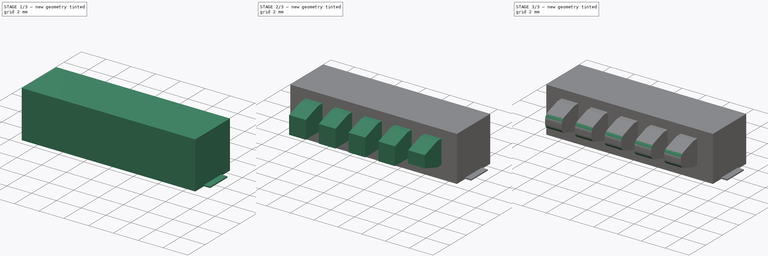
[diagram: build sequence overview — one tinted view per stage of 3, left to right]
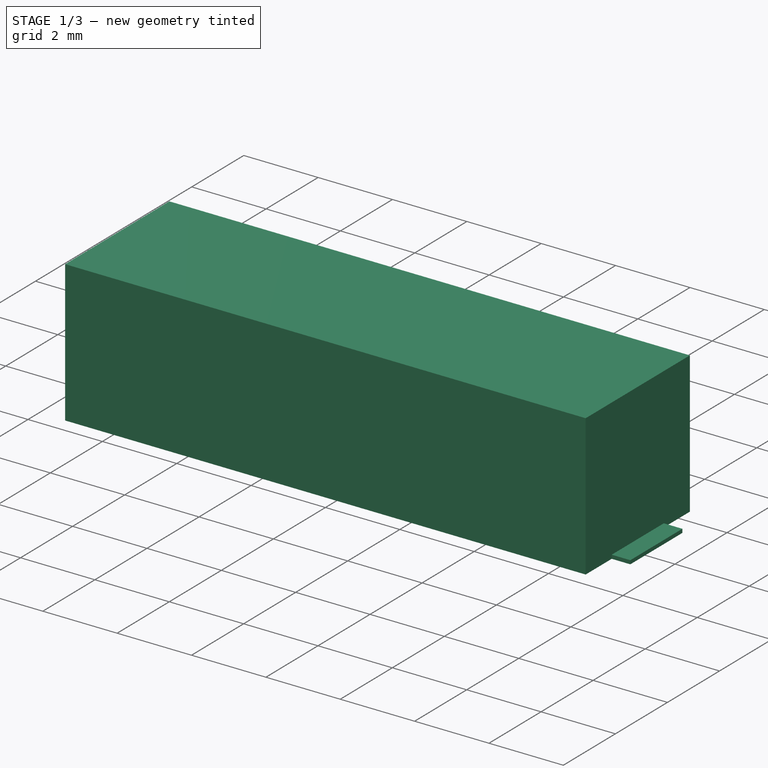
[diagram: stage 1 of 3 — iso view after this stage's code; geometry added in this stage tinted green]
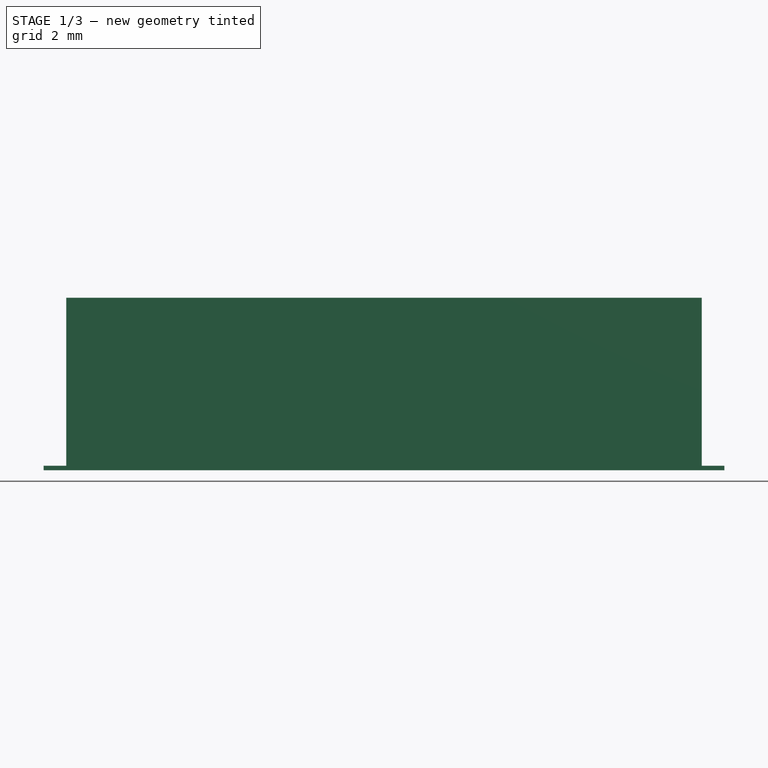
[diagram: stage 1 of 3 — front view after this stage's code; geometry added in this stage tinted green]
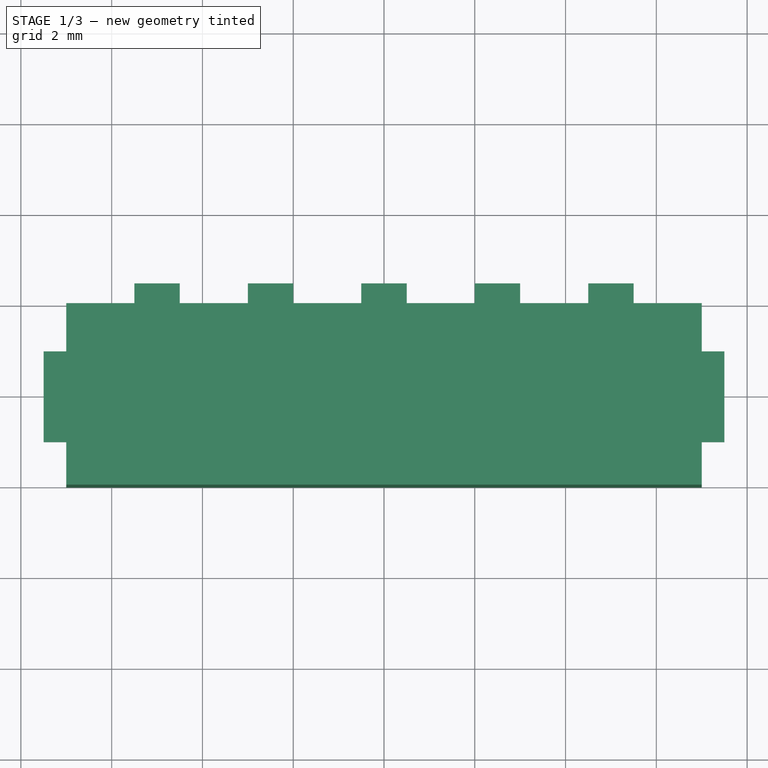
[diagram: stage 1 of 3 — top view after this stage's code; geometry added in this stage tinted green]
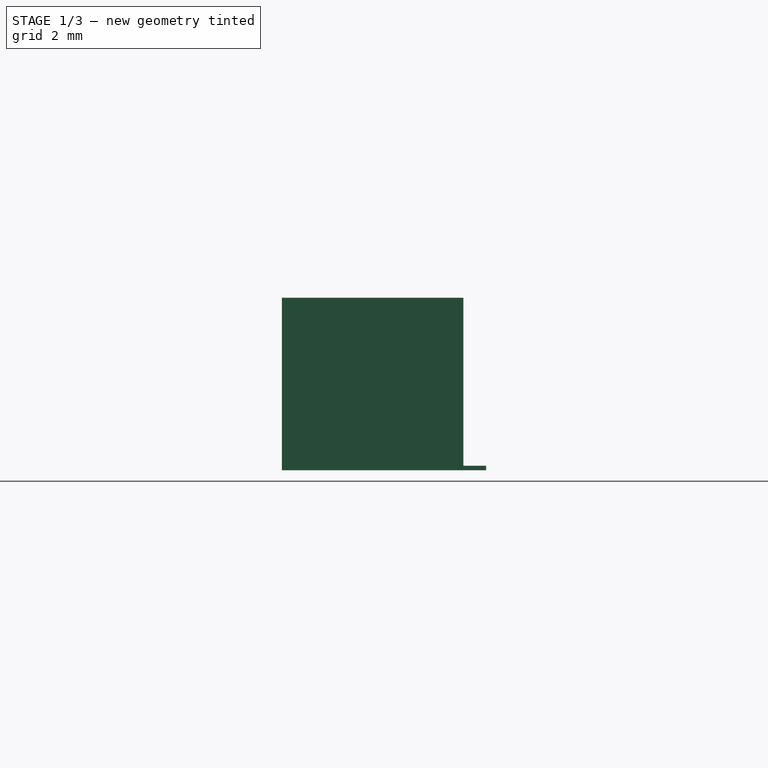
[diagram: stage 1 of 3 — right view after this stage's code; geometry added in this stage tinted green]
FCSTD DOCUMENT  (FreeCAD 0.19R24291 (Git))
Label: AVX-9155-005-541
License: All rights reserved
LicenseURL: http://en.wikipedia.org/wiki/All_rights_reserved
objects: Sketcher::SketchObject×3, PartDesign::Pad×3, PartDesign::Chamfer×3, PartDesign::Fillet×1, PartDesign::Body×1
note: 18 computed .brp shape members not serialized (recipe doc carries the construction recipe); baked Part::Feature solids carry a one-line shape summary decoded from their .brp

FEATURE [Sketcher::SketchObject] Sketch
  FullyConstrained = true
  MapMode = 5
  Support = -> [XY_Plane]
  sketch-geometry (4):
    g0: LineSegment StartX=-7 StartY=0 StartZ=0 EndX=7 EndY=0 EndZ=0
    g1: LineSegment StartX=7 StartY=0 StartZ=0 EndX=7 EndY=4 EndZ=0
    g2: LineSegment StartX=7 StartY=4 StartZ=0 EndX=-7 EndY=4 EndZ=0
    g3: LineSegment StartX=-7 StartY=4 StartZ=0 EndX=-7 EndY=0 EndZ=0
  constraints (12):
    c: Coincident(g0,g1)
    c: Coincident(g1,g2)
    c: Coincident(g2,g3)
    c: Coincident(g3,g0)
    c: Horizontal(g0)
    c: Horizontal(g2)
    c: Vertical(g1)
    c: Vertical(g3)
    c: PointOnObject(g0,g-1)
    c: DistanceX(g2,g2) = 14
    c: DistanceX(g0,g-1) = 7
    c: DistanceY(g1,g1) = 4
FEATURE [PartDesign::Pad] Pad
  Direction = (1,1,1)
  Length = 3.8
  Length2 = 100
  Profile = -> Sketch
  Type = 0
FEATURE [Sketcher::SketchObject] Sketch001
  FullyConstrained = true
  MapMode = 5
  Support = -> [XY_Plane]
  sketch-geometry (28):
    g0: LineSegment StartX=-0.5 StartY=4 StartZ=0 EndX=0.5 EndY=4 EndZ=0
    g1: LineSegment StartX=0.5 StartY=4 StartZ=0 EndX=0.5 EndY=4.5 EndZ=0
    g2: LineSegment StartX=0.5 StartY=4.5 StartZ=0 EndX=-0.5 EndY=4.5 EndZ=0
    g3: LineSegment StartX=-0.5 StartY=4.5 StartZ=0 EndX=-0.5 EndY=4 EndZ=0
    g4: LineSegment StartX=-5.5 StartY=4 StartZ=0 EndX=-4.5 EndY=4 EndZ=0
    g5: LineSegment StartX=-4.5 StartY=4 StartZ=0 EndX=-4.5 EndY=4.5 EndZ=0
    g6: LineSegment StartX=-4.5 StartY=4.5 StartZ=0 EndX=-5.5 EndY=4.5 EndZ=0
    g7: LineSegment StartX=-5.5 StartY=4.5 StartZ=0 EndX=-5.5 EndY=4 EndZ=0
    g8: LineSegment StartX=-3 StartY=4 StartZ=0 EndX=-2 EndY=4 EndZ=0
    g9: LineSegment StartX=-2 StartY=4 StartZ=0 EndX=-2 EndY=4.5 EndZ=0
    g10: LineSegment StartX=-2 StartY=4.5 StartZ=0 EndX=-3 EndY=4.5 EndZ=0
    g11: LineSegment StartX=-3 StartY=4.5 StartZ=0 EndX=-3 EndY=4 EndZ=0
    g12: LineSegment StartX=2 StartY=4 StartZ=0 EndX=3 EndY=4 EndZ=0
    g13: LineSegment StartX=3 StartY=4 StartZ=0 EndX=3 EndY=4.5 EndZ=0
    g14: LineSegment StartX=3 StartY=4.5 StartZ=0 EndX=2 EndY=4.5 EndZ=0
    g15: LineSegment StartX=2 StartY=4.5 StartZ=0 EndX=2 EndY=4 EndZ=0
    g16: LineSegment StartX=4.5 StartY=4 StartZ=0 EndX=5.5 EndY=4 EndZ=0
    g17: LineSegment StartX=5.5 StartY=4 StartZ=0 EndX=5.5 EndY=4.5 EndZ=0
    g18: LineSegment StartX=5.5 StartY=4.5 StartZ=0 EndX=4.5 EndY=4.5 EndZ=0
    g19: LineSegment StartX=4.5 StartY=4.5 StartZ=0 EndX=4.5 EndY=4 EndZ=0
    g20: LineSegment StartX=-7.5 StartY=3 StartZ=0 EndX=-7 EndY=3 EndZ=0
    g21: LineSegment StartX=-7 StartY=3 StartZ=0 EndX=-7 EndY=1 EndZ=0
    g22: LineSegment StartX=-7 StartY=1 StartZ=0 EndX=-7.5 EndY=1 EndZ=0
    g23: LineSegment StartX=-7.5 StartY=1 StartZ=0 EndX=-7.5 EndY=3 EndZ=0
    g24: LineSegment StartX=7.5 StartY=3 StartZ=0 EndX=7 EndY=3 EndZ=0
    g25: LineSegment StartX=7 StartY=3 StartZ=0 EndX=7 EndY=1 EndZ=0
    g26: LineSegment StartX=7 StartY=1 StartZ=0 EndX=7.5 EndY=1 EndZ=0
    g27: LineSegment StartX=7.5 StartY=1 StartZ=0 EndX=7.5 EndY=3 EndZ=0
  constraints (84):
    c: Coincident(g0,g1)
    c: Coincident(g1,g2)
    c: Coincident(g2,g3)
    c: Coincident(g3,g0)
    c: Horizontal(g0)
    c: Horizontal(g2)
    c: Vertical(g1)
    c: Vertical(g3)
    c: DistanceY(g-1,g0) = 4
    c: DistanceX(g0,g-1) = 0.5
    c: DistanceX(g2,g2) = 1
    c: DistanceY(g3,g3) = 0.5
    c: Coincident(g4,g5)
    c: Coincident(g5,g6)
    c: Coincident(g6,g7)
    c: Coincident(g7,g4)
    c: Horizontal(g4)
    c: Horizontal(g6)
    c: Vertical(g5)
    c: Vertical(g7)
    c: Coincident(g8,g9)
    c: Coincident(g9,g10)
    c: Coincident(g10,g11)
    c: Coincident(g11,g8)
    c: Horizontal(g8)
    c: Horizontal(g10)
    c: Vertical(g9)
    c: Vertical(g11)
    c: Coincident(g12,g13)
    c: Coincident(g13,g14)
    c: Coincident(g14,g15)
    c: Coincident(g15,g12)
    c: Horizontal(g12)
    c: Horizontal(g14)
    c: Vertical(g13)
    c: Vertical(g15)
    c: Coincident(g16,g17)
    c: Coincident(g17,g18)
    c: Coincident(g18,g19)
    c: Coincident(g19,g16)
    c: Horizontal(g16)
    c: Horizontal(g18)
    c: Vertical(g17)
    c: Vertical(g19)
    c: PointOnObject(g9,g2)
    c: PointOnObject(g5,g2)
    c: PointOnObject(g8,g0)
    c: PointOnObject(g4,g0)
    c: PointOnObject(g14,g2)
    c: PointOnObject(g18,g2)
    c: PointOnObject(g12,g0)
    c: PointOnObject(g16,g0)
    c: DistanceX(g10,g10) = 1
    c: DistanceX(g6,g6) = 1
    c: DistanceX(g14,g14) = 1
    c: DistanceX(g18,g18) = 1
    c: DistanceX(g10,g2) = 2.5
    c: DistanceX(g6,g10) = 2.5
    c: DistanceX(g2,g14) = 2.5
    c: DistanceX(g14,g18) = 2.5
    c: Coincident(g20,g21)
    c: Coincident(g21,g22)
    c: Coincident(g22,g23)
    c: Coincident(g23,g20)
    c: Horizontal(g20)
    c: Horizontal(g22)
    c: Vertical(g21)
    c: Vertical(g23)
    c: Coincident(g24,g25)
    c: Coincident(g25,g26)
    c: Coincident(g26,g27)
    c: Coincident(g27,g24)
    c: Horizontal(g24)
    c: Horizontal(g26)
    c: Vertical(g25)
    c: Vertical(g27)
    c: DistanceX(g20,g20) = 0.5
    c: DistanceX(g24,g24) = 0.5
    c: DistanceY(g23,g23) = 2
    c: DistanceY(g27,g27) = 2
    c: DistanceX(g20,g24) = 15
    c: DistanceX(g20,g-1) = 7
    c: DistanceY(g-1,g21) = 1
    c: PointOnObject(g25,g22)
FEATURE [PartDesign::Pad] Pad001
  BaseFeature = -> Pad
  Direction = (1,1,1)
  Length = 0.1
  Length2 = 100
  Profile = -> Sketch001
  Type = 0
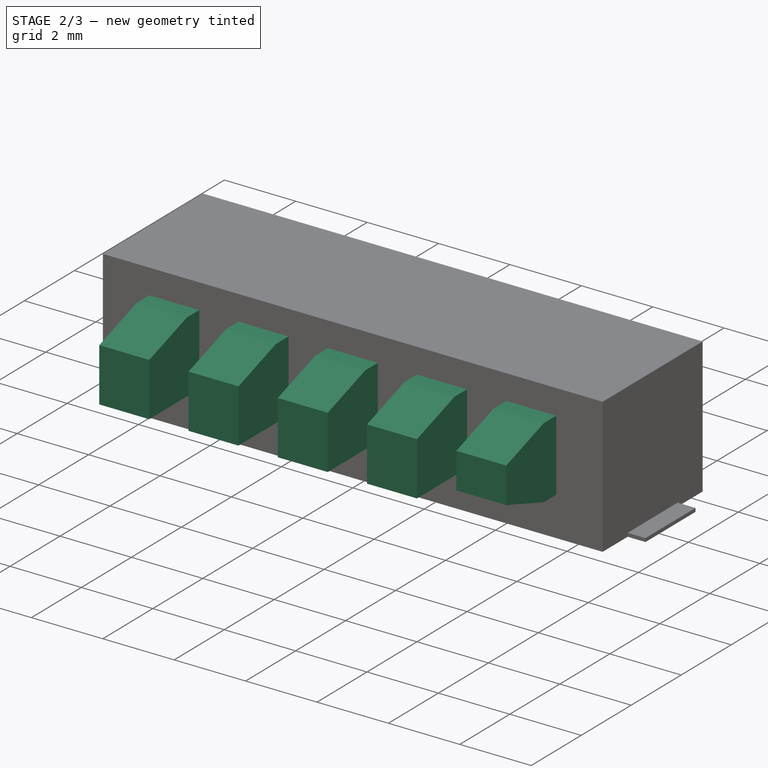
[diagram: stage 2 of 3 — iso view after this stage's code; geometry added in this stage tinted green]
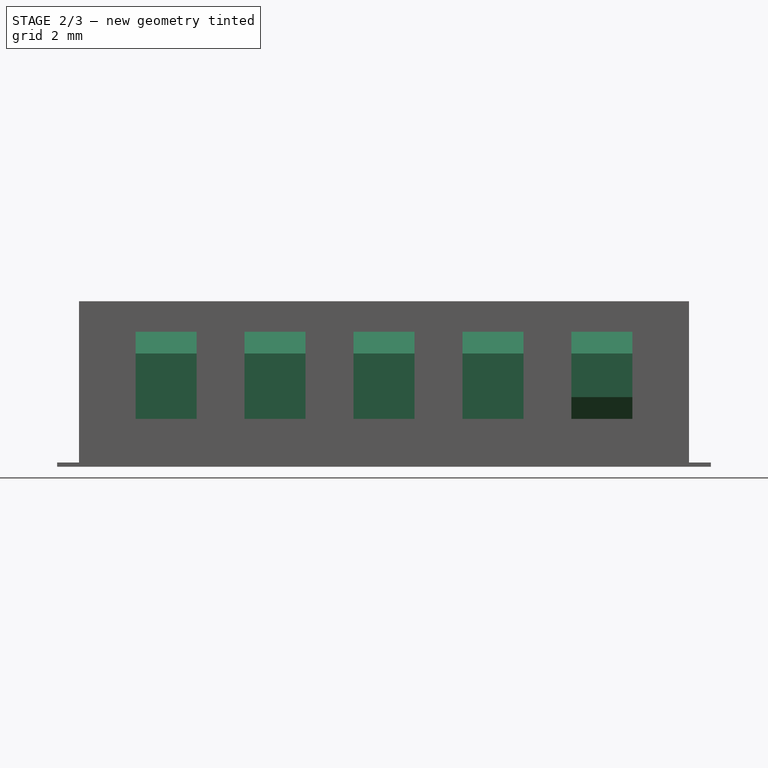
[diagram: stage 2 of 3 — front view after this stage's code; geometry added in this stage tinted green]
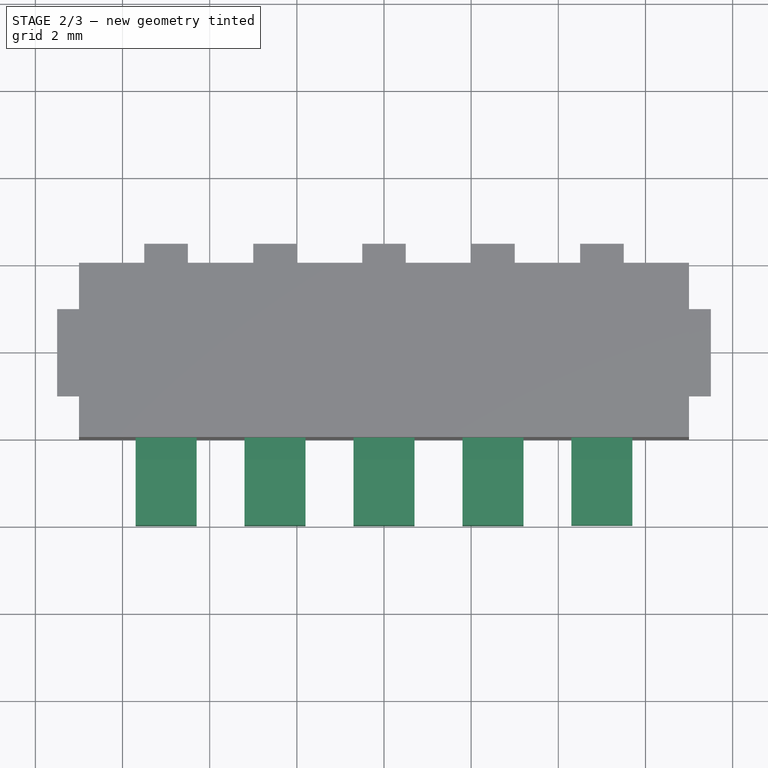
[diagram: stage 2 of 3 — top view after this stage's code; geometry added in this stage tinted green]
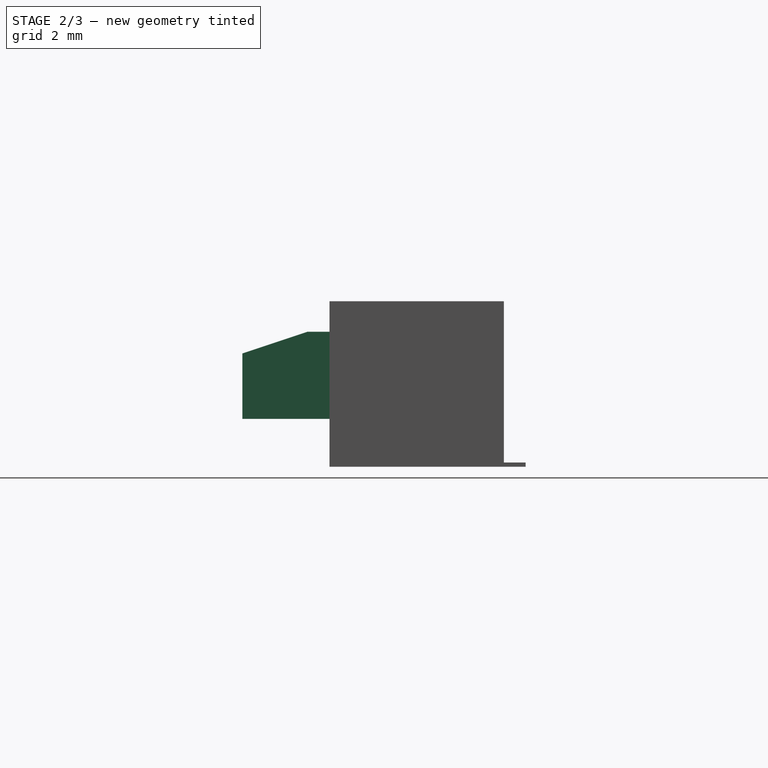
[diagram: stage 2 of 3 — right view after this stage's code; geometry added in this stage tinted green]
FEATURE [Sketcher::SketchObject] Sketch002
  FullyConstrained = true
  MapMode = 5
  Placement = pos=(0,0,0) rot=(1,0,0;1.5708rad)
  Support = -> [XZ_Plane]
  sketch-geometry (21):
    g0: LineSegment StartX=-0.7 StartY=3.1 StartZ=0 EndX=0.7 EndY=3.1 EndZ=0
    g1: LineSegment StartX=0.7 StartY=3.1 StartZ=0 EndX=0.7 EndY=1.1 EndZ=0
    g2: LineSegment StartX=0.7 StartY=1.1 StartZ=0 EndX=-0.7 EndY=1.1 EndZ=0
    g3: LineSegment StartX=-0.7 StartY=1.1 StartZ=0 EndX=-0.7 EndY=3.1 EndZ=0
    g4: LineSegment StartX=-0.7 StartY=2.1 StartZ=0 EndX=0.7 EndY=2.1 EndZ=0
    g5: LineSegment StartX=1.8 StartY=3.1 StartZ=0 EndX=3.2 EndY=3.1 EndZ=0
    g6: LineSegment StartX=3.2 StartY=3.1 StartZ=0 EndX=3.2 EndY=1.1 EndZ=0
    g7: LineSegment StartX=3.2 StartY=1.1 StartZ=0 EndX=1.8 EndY=1.1 EndZ=0
    g8: LineSegment StartX=1.8 StartY=1.1 StartZ=0 EndX=1.8 EndY=3.1 EndZ=0
    g9: LineSegment StartX=4.3 StartY=3.1 StartZ=0 EndX=5.7 EndY=3.1 EndZ=0
    g10: LineSegment StartX=5.7 StartY=3.1 StartZ=0 EndX=5.7 EndY=1.1 EndZ=0
    g11: LineSegment StartX=5.7 StartY=1.1 StartZ=0 EndX=4.3 EndY=1.1 EndZ=0
    g12: LineSegment StartX=4.3 StartY=1.1 StartZ=0 EndX=4.3 EndY=3.1 EndZ=0
    g13: LineSegment StartX=-3.2 StartY=3.1 StartZ=0 EndX=-1.8 EndY=3.1 EndZ=0
    g14: LineSegment StartX=-1.8 StartY=3.1 StartZ=0 EndX=-1.8 EndY=1.1 EndZ=0
    g15: LineSegment StartX=-1.8 StartY=1.1 StartZ=0 EndX=-3.2 EndY=1.1 EndZ=0
    g16: LineSegment StartX=-3.2 StartY=1.1 StartZ=0 EndX=-3.2 EndY=3.1 EndZ=0
    g17: LineSegment StartX=-5.7 StartY=3.1 StartZ=0 EndX=-4.3 EndY=3.1 EndZ=0
    g18: LineSegment StartX=-4.3 StartY=3.1 StartZ=0 EndX=-4.3 EndY=1.1 EndZ=0
    g19: LineSegment StartX=-4.3 StartY=1.1 StartZ=0 EndX=-5.7 EndY=1.1 EndZ=0
    g20: LineSegment StartX=-5.7 StartY=1.1 StartZ=0 EndX=-5.7 EndY=3.1 EndZ=0
  constraints (63):
    c: Coincident(g0,g1)
    c: Coincident(g1,g2)
    c: Coincident(g2,g3)
    c: Coincident(g3,g0)
    c: Horizontal(g0)
    c: Horizontal(g2)
    c: Vertical(g1)
    c: Vertical(g3)
    c: DistanceX(g0,g0) = 1.4
    c: DistanceX(g0,g-1) = 0.7
    c: PointOnObject(g4,g1)
    c: Horizontal(g4)
    c: Symmetric(g0,g2,g4)
    c: DistanceY(g-1,g4) = 2.1
    c: DistanceY(g1,g1) = 2
    c: Coincident(g5,g6)
    c: Coincident(g6,g7)
    c: Coincident(g7,g8)
    c: Coincident(g8,g5)
    c: Horizontal(g5)
    c: Horizontal(g7)
    c: Vertical(g6)
    c: Vertical(g8)
    c: Coincident(g9,g10)
    c: Coincident(g10,g11)
    c: Coincident(g11,g12)
    c: Coincident(g12,g9)
    c: Horizontal(g9)
    c: Horizontal(g11)
    c: Vertical(g10)
    c: Vertical(g12)
    c: Coincident(g13,g14)
    c: Coincident(g14,g15)
    c: Coincident(g15,g16)
    c: Coincident(g16,g13)
    c: Horizontal(g13)
    c: Horizontal(g15)
    c: Vertical(g14)
    c: Vertical(g16)
    c: Coincident(g17,g18)
    c: Coincident(g18,g19)
    c: Coincident(g19,g20)
    c: Coincident(g20,g17)
    c: Horizontal(g17)
    c: Horizontal(g19)
    c: Vertical(g18)
    c: Vertical(g20)
    c: DistanceX(g13,g13) = 1.4
    c: DistanceX(g17,g17) = 1.4
    c: DistanceX(g5,g5) = 1.4
    c: DistanceX(g9,g9) = 1.4
    c: DistanceX(g0,g5) = 2.5
    c: DistanceX(g5,g9) = 2.5
    c: DistanceX(g13,g0) = 2.5
    c: DistanceX(g17,g13) = 2.5
    c: PointOnObject(g13,g0)
    c: PointOnObject(g17,g0)
    c: PointOnObject(g5,g0)
    c: PointOnObject(g9,g0)
    c: DistanceY(g18,g18) = 2
    c: DistanceY(g14,g14) = 2
    c: DistanceY(g8,g8) = 2
    c: DistanceY(g12,g12) = 2
FEATURE [PartDesign::Pad] Pad002
  BaseFeature = -> Pad001
  Direction = (1,1,1)
  Length = 2
  Length2 = 100
  Profile = -> Sketch002
  Type = 0
FEATURE [PartDesign::Chamfer] Chamfer
  Angle = 45
  Base = -> Pad002 [Edge55,Edge63,Edge71,Edge79,Edge87]
  BaseFeature = -> Pad002
  ChamferType = 1
  FlipDirection = false
  Size = 1.5
  Size2 = 0.5
  SupportTransform = false
FEATURE [PartDesign::Chamfer] Chamfer001
  Angle = 45
  Base = -> Chamfer [Edge35]
  BaseFeature = -> Chamfer
  ChamferType = 1
  FlipDirection = false
  Size = 0.5
  Size2 = 1.5
  SupportTransform = false
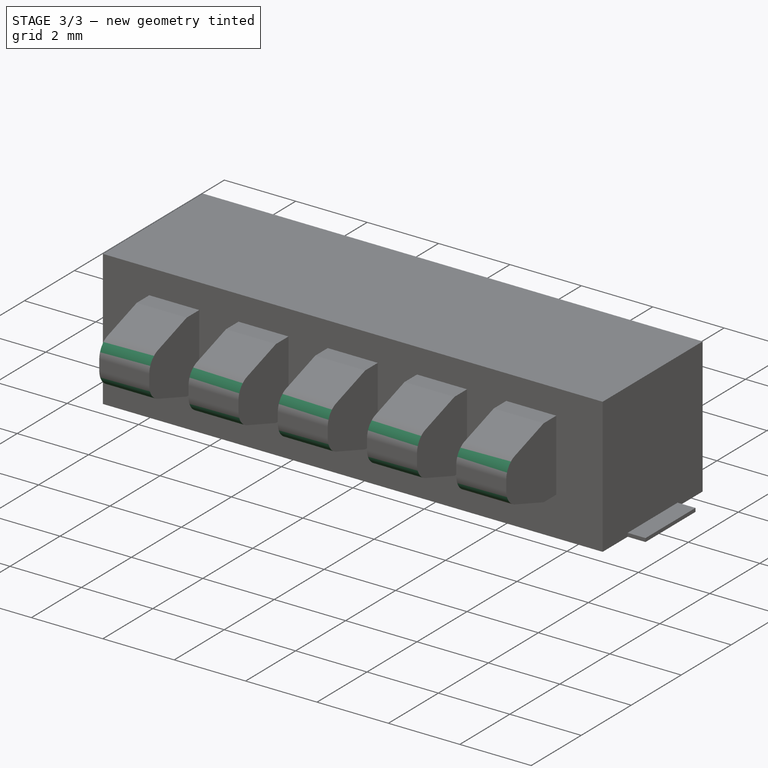
[diagram: stage 3 of 3 — iso view after this stage's code; geometry added in this stage tinted green]
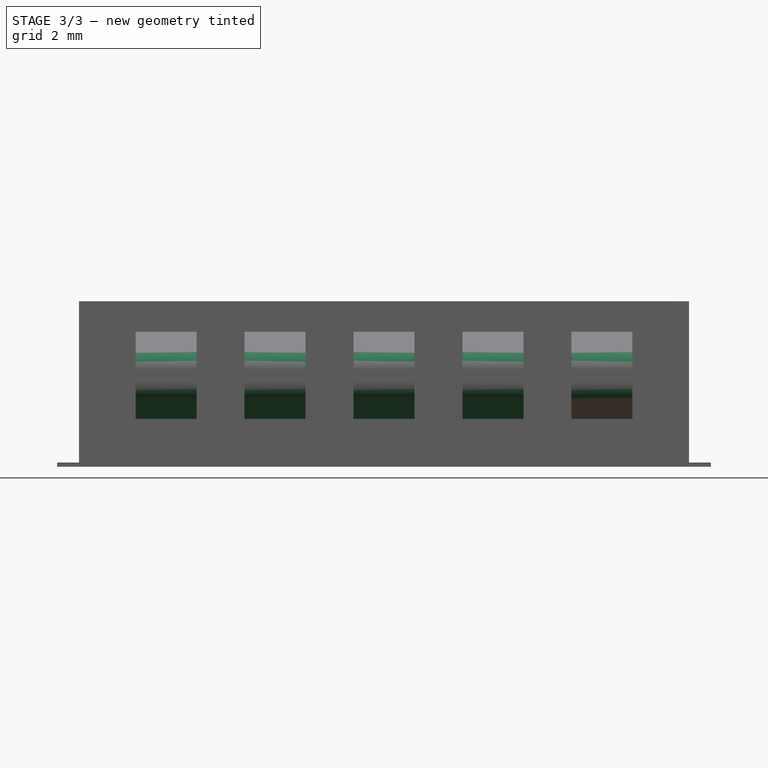
[diagram: stage 3 of 3 — front view after this stage's code; geometry added in this stage tinted green]
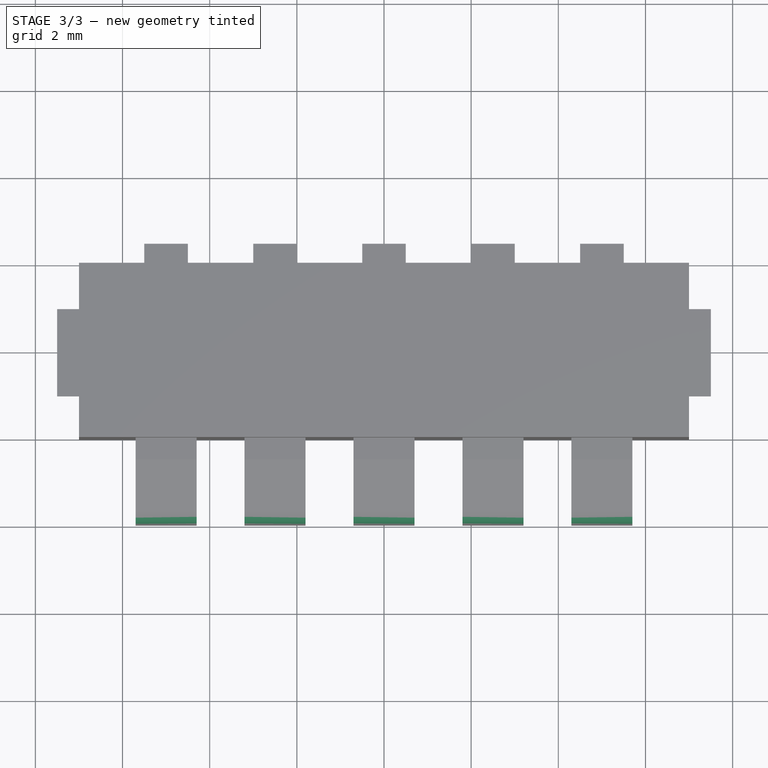
[diagram: stage 3 of 3 — top view after this stage's code; geometry added in this stage tinted green]
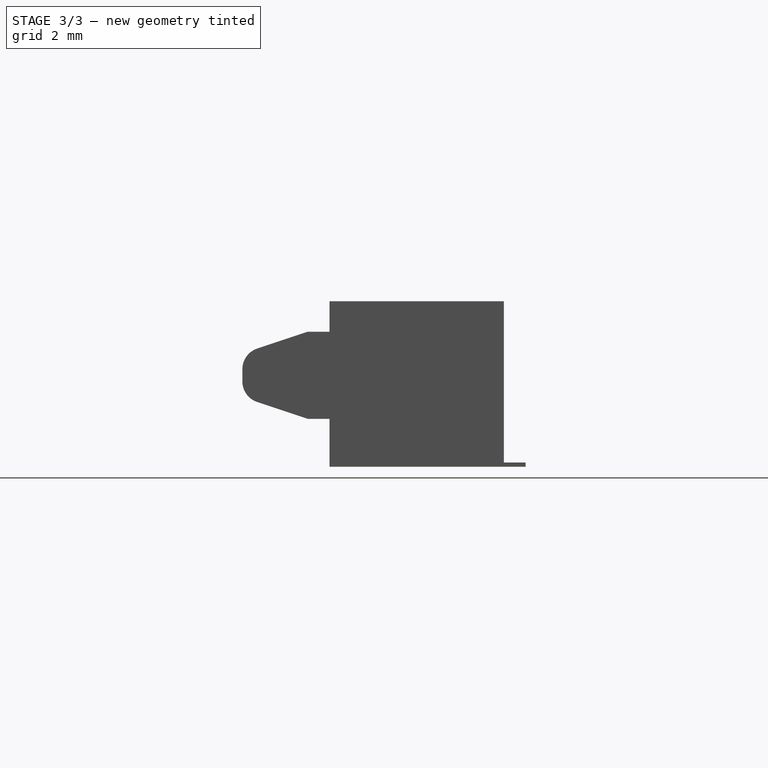
[diagram: stage 3 of 3 — right view after this stage's code; geometry added in this stage tinted green]
FEATURE [PartDesign::Chamfer] Chamfer002
  Angle = 45
  Base = -> Chamfer001 [Edge74,Edge84,Edge94,Edge104]
  BaseFeature = -> Chamfer001
  ChamferType = 1
  FlipDirection = false
  Size = 1.5
  Size2 = 0.5
  SupportTransform = false
FEATURE [PartDesign::Fillet] Fillet
  Base = -> Chamfer002 [Edge161,Edge8,Edge163,Edge165,Edge167,Edge168,Edge166,Edge164,Edge7,Edge162]
  BaseFeature = -> Chamfer002
  Radius = 0.5
  SupportTransform = false
FEATURE [PartDesign::Body] Body
  Group = -> [Sketch,Pad,Sketch001,Pad001,Sketch002,Pad002,Chamfer,Chamfer001,Chamfer002,Fillet]
  Origin = -> Origin
  Tip = -> Fillet
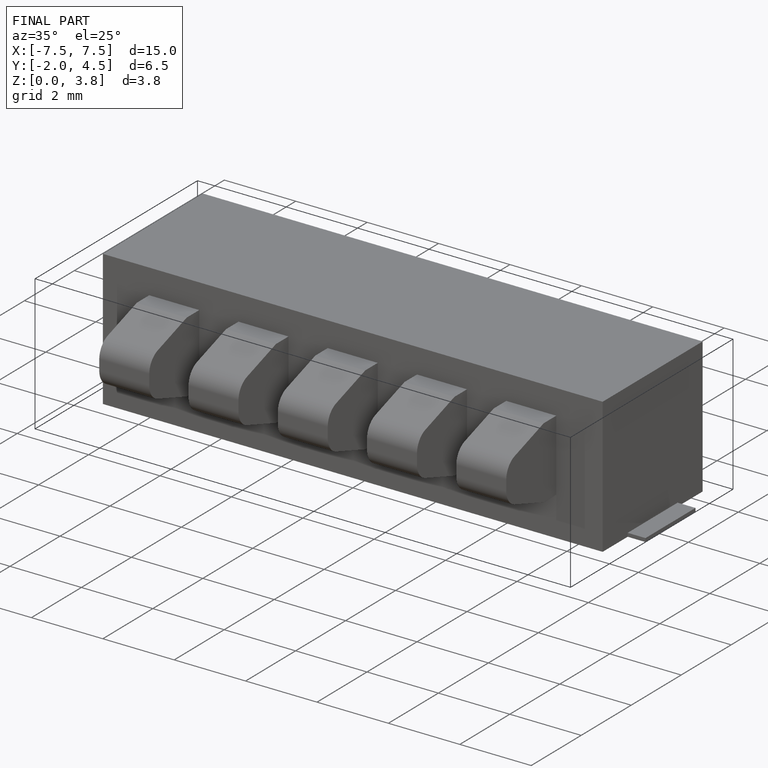
[diagram: finished part — iso view with bounding-box wireframe]
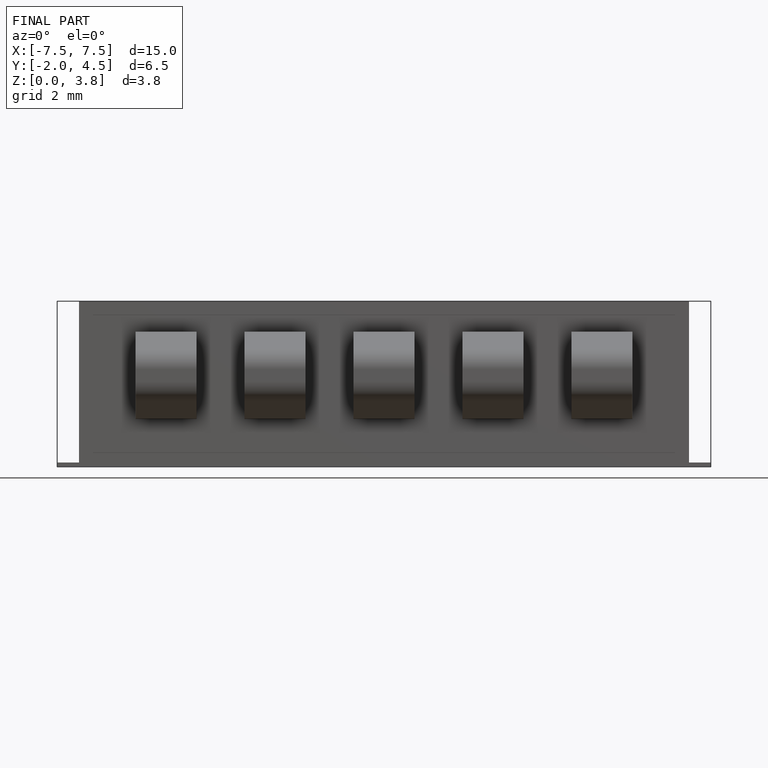
[diagram: finished part — front view with bounding-box wireframe]
